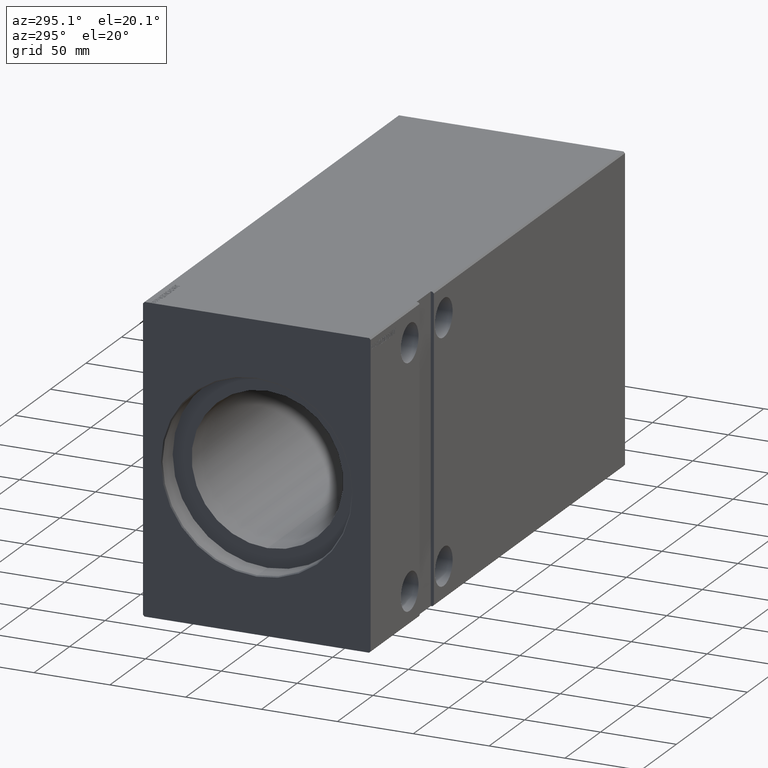
[diagram: clean part render]
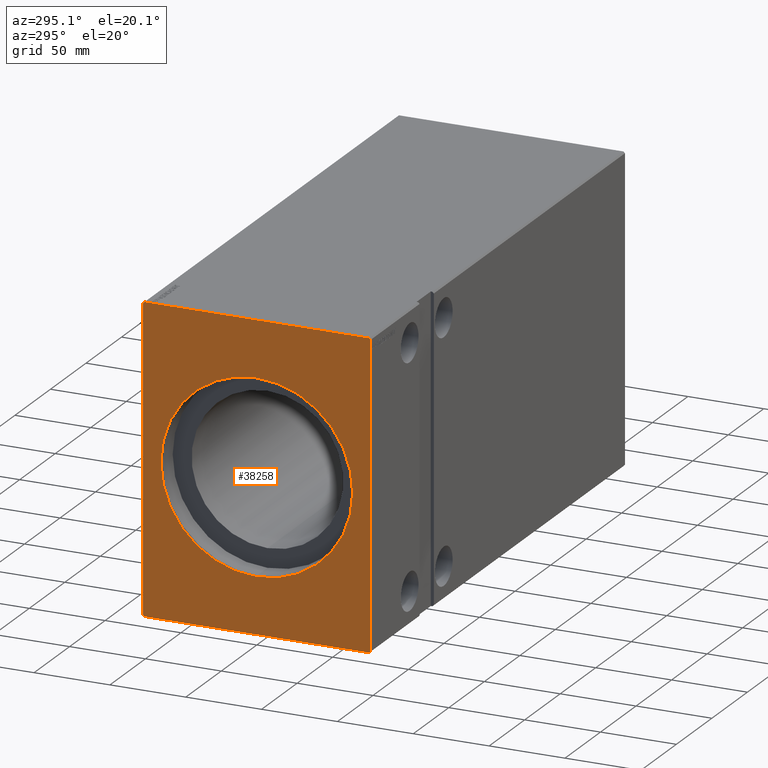
[diagram: same view with one face highlighted and labeled with its STEP entity id]
A machine part, auxiliary view. The second image highlights one B-rep face of the part: STEP entity #38258.
In plain terms, the highlighted planar face has unit normal (1, 0, 0).
Its self-contained STEP definition (entity closure, byte-faithful):
#1029 = DIRECTION ( 'NONE',  ( 0.000000000000000000, 1.401796748264086446E-16, -1.000000000000000000 ) ) ;
#2903 = CARTESIAN_POINT ( 'NONE',  ( 0.000000000000000000, -74.00000000000000000, 99.99999999999994316 ) ) ;
#3480 = CIRCLE ( 'NONE', #13685, 63.20000000000003126 ) ;
#3634 = DIRECTION ( 'NONE',  ( 0.000000000000000000, -0.7071067811865474617, 0.7071067811865474617 ) ) ;
#4190 = CARTESIAN_POINT ( 'NONE',  ( 0.000000000000000000, 74.00000000000001421, -100.0000000000000426 ) ) ;
#4796 = CARTESIAN_POINT ( 'NONE',  ( 0.000000000000000000, -73.99999999999998579, -100.0000000000000426 ) ) ;
#4915 = VECTOR ( 'NONE', #11312, 1000.000000000000114 ) ;
#5062 = EDGE_CURVE ( 'NONE', #20457, #39703, #41734, .T. ) ;
#6271 = AXIS2_PLACEMENT_3D ( 'NONE', #38188, #15203, #37768 ) ;
#6889 = CARTESIAN_POINT ( 'NONE',  ( 0.000000000000000000, 74.00000000000000000, 99.99999999999995737 ) ) ;
#7751 = ORIENTED_EDGE ( 'NONE', *, *, #5062, .F. ) ;
#7883 = DIRECTION ( 'NONE',  ( 0.000000000000000000, 0.7071067811865474617, -0.7071067811865474617 ) ) ;
#8468 = CARTESIAN_POINT ( 'NONE',  ( 0.000000000000000000, -75.00000000000000000, 98.99999999999994316 ) ) ;
#9426 = EDGE_CURVE ( 'NONE', #29618, #33906, #28245, .T. ) ;
#9592 = LINE ( 'NONE', #31967, #10909 ) ;
#9775 = VERTEX_POINT ( 'NONE', #33196 ) ;
#10095 = VECTOR ( 'NONE', #37890, 1000.000000000000000 ) ;
#10573 = EDGE_LOOP ( 'NONE', ( #31581, #41894 ) ) ;
#10909 = VECTOR ( 'NONE', #38356, 1000.000000000000000 ) ;
#11312 = DIRECTION ( 'NONE',  ( 0.000000000000000000, -0.7071067811865474617, -0.7071067811865474617 ) ) ;
#11520 = CARTESIAN_POINT ( 'NONE',  ( 0.000000000000000000, 0.000000000000000000, 0.000000000000000000 ) ) ;
#11842 = CARTESIAN_POINT ( 'NONE',  ( 0.000000000000000000, -73.99999999999998579, -100.0000000000000426 ) ) ;
#11940 = CARTESIAN_POINT ( 'NONE',  ( 0.000000000000000000, 0.000000000000000000, 63.20000000000003126 ) ) ;
#12329 = VERTEX_POINT ( 'NONE', #6889 ) ;
#12342 = CARTESIAN_POINT ( 'NONE',  ( 0.000000000000000000, 75.00000000000001421, -99.00000000000004263 ) ) ;
#13685 = AXIS2_PLACEMENT_3D ( 'NONE', #16311, #38674, #35275 ) ;
#15118 = VERTEX_POINT ( 'NONE', #36922 ) ;
#15196 = ORIENTED_EDGE ( 'NONE', *, *, #31089, .F. ) ;
#15203 = DIRECTION ( 'NONE',  ( 1.000000000000000000, 0.000000000000000000, 0.000000000000000000 ) ) ;
#16311 = CARTESIAN_POINT ( 'NONE',  ( 0.000000000000000000, 0.000000000000000000, 0.000000000000000000 ) ) ;
#17699 = DIRECTION ( 'NONE',  ( 0.000000000000000000, 0.000000000000000000, -1.000000000000000000 ) ) ;
#18278 = EDGE_CURVE ( 'NONE', #39703, #12329, #38994, .T. ) ;
#18658 = VERTEX_POINT ( 'NONE', #2903 ) ;
#18719 = CARTESIAN_POINT ( 'NONE',  ( 0.000000000000000000, 74.00000000000001421, -100.0000000000000426 ) ) ;
#18925 = EDGE_LOOP ( 'NONE', ( #38502, #7751, #15196, #38802, #31320, #27026, #19566, #24771 ) ) ;
#19539 = VECTOR ( 'NONE', #1029, 1000.000000000000000 ) ;
#19566 = ORIENTED_EDGE ( 'NONE', *, *, #40762, .F. ) ;
#20457 = VERTEX_POINT ( 'NONE', #24465 ) ;
#20463 = EDGE_CURVE ( 'NONE', #9775, #15118, #30231, .T. ) ;
#21231 = CARTESIAN_POINT ( 'NONE',  ( 0.000000000000000000, 7.739767770611276825E-15, -63.20000000000003126 ) ) ;
#23942 = CARTESIAN_POINT ( 'NONE',  ( 0.000000000000000000, 75.00000000000000000, 98.99999999999995737 ) ) ;
#24085 = LINE ( 'NONE', #40060, #37515 ) ;
#24465 = CARTESIAN_POINT ( 'NONE',  ( 0.000000000000000000, 75.00000000000001421, -99.00000000000004263 ) ) ;
#24771 = ORIENTED_EDGE ( 'NONE', *, *, #28962, .F. ) ;
#26437 = CARTESIAN_POINT ( 'NONE',  ( 0.000000000000000000, 75.00000000000000000, 98.99999999999995737 ) ) ;
#27026 = ORIENTED_EDGE ( 'NONE', *, *, #20463, .F. ) ;
#27909 = DIRECTION ( 'NONE',  ( 0.000000000000000000, 0.7071067811865474617, 0.7071067811865474617 ) ) ;
#27977 = VECTOR ( 'NONE', #27909, 1000.000000000000114 ) ;
#28245 = LINE ( 'NONE', #11842, #28398 ) ;
#28398 = VECTOR ( 'NONE', #41027, 1000.000000000000000 ) ;
#28962 = EDGE_CURVE ( 'NONE', #12329, #18658, #9592, .T. ) ;
#29618 = VERTEX_POINT ( 'NONE', #4796 ) ;
#30231 = LINE ( 'NONE', #8468, #19539 ) ;
#31089 = EDGE_CURVE ( 'NONE', #33906, #20457, #34920, .T. ) ;
#31117 = FACE_BOUND ( 'NONE', #10573, .T. ) ;
#31320 = ORIENTED_EDGE ( 'NONE', *, *, #33527, .F. ) ;
#31378 = EDGE_CURVE ( 'NONE', #35484, #34768, #3480, .T. ) ;
#31581 = ORIENTED_EDGE ( 'NONE', *, *, #31378, .T. ) ;
#31967 = CARTESIAN_POINT ( 'NONE',  ( 0.000000000000000000, 74.00000000000000000, 99.99999999999995737 ) ) ;
#33196 = CARTESIAN_POINT ( 'NONE',  ( 0.000000000000000000, -75.00000000000000000, 98.99999999999994316 ) ) ;
#33235 = VECTOR ( 'NONE', #3634, 1000.000000000000114 ) ;
#33527 = EDGE_CURVE ( 'NONE', #15118, #29618, #24085, .T. ) ;
#33534 = AXIS2_PLACEMENT_3D ( 'NONE', #11520, #40073, #17699 ) ;
#33906 = VERTEX_POINT ( 'NONE', #4190 ) ;
#34768 = VERTEX_POINT ( 'NONE', #21231 ) ;
#34920 = LINE ( 'NONE', #18719, #27977 ) ;
#34948 = CARTESIAN_POINT ( 'NONE',  ( 0.000000000000000000, -74.00000000000000000, 99.99999999999994316 ) ) ;
#35275 = DIRECTION ( 'NONE',  ( 0.000000000000000000, 0.000000000000000000, -1.000000000000000000 ) ) ;
#35484 = VERTEX_POINT ( 'NONE', #11940 ) ;
#36873 = PLANE ( 'NONE',  #33534 ) ;
#36922 = CARTESIAN_POINT ( 'NONE',  ( 0.000000000000000000, -74.99999999999997158, -99.00000000000005684 ) ) ;
#37515 = VECTOR ( 'NONE', #7883, 1000.000000000000114 ) ;
#37768 = DIRECTION ( 'NONE',  ( 0.000000000000000000, 0.000000000000000000, -1.000000000000000000 ) ) ;
#37890 = DIRECTION ( 'NONE',  ( 0.000000000000000000, -7.008983741320432232E-17, 1.000000000000000000 ) ) ;
#38136 = LINE ( 'NONE', #34948, #4915 ) ;
#38188 = CARTESIAN_POINT ( 'NONE',  ( 0.000000000000000000, 0.000000000000000000, 0.000000000000000000 ) ) ;
#38258 = ADVANCED_FACE ( 'NONE', ( #31117, #40282 ), #36873, .F. ) ;
#38356 = DIRECTION ( 'NONE',  ( 0.000000000000000000, -1.000000000000000000, -9.376883653928687363E-17 ) ) ;
#38502 = ORIENTED_EDGE ( 'NONE', *, *, #18278, .F. ) ;
#38674 = DIRECTION ( 'NONE',  ( 1.000000000000000000, 0.000000000000000000, 0.000000000000000000 ) ) ;
#38802 = ORIENTED_EDGE ( 'NONE', *, *, #9426, .F. ) ;
#38994 = LINE ( 'NONE', #26437, #33235 ) ;
#39703 = VERTEX_POINT ( 'NONE', #23942 ) ;
#40060 = CARTESIAN_POINT ( 'NONE',  ( 0.000000000000000000, -74.99999999999997158, -99.00000000000005684 ) ) ;
#40073 = DIRECTION ( 'NONE',  ( 1.000000000000000000, 0.000000000000000000, 0.000000000000000000 ) ) ;
#40279 = CIRCLE ( 'NONE', #6271, 63.20000000000003126 ) ;
#40282 = FACE_OUTER_BOUND ( 'NONE', #18925, .T. ) ;
#40417 = EDGE_CURVE ( 'NONE', #34768, #35484, #40279, .T. ) ;
#40762 = EDGE_CURVE ( 'NONE', #18658, #9775, #38136, .T. ) ;
#41027 = DIRECTION ( 'NONE',  ( 0.000000000000000000, 1.000000000000000000, 0.000000000000000000 ) ) ;
#41734 = LINE ( 'NONE', #12342, #10095 ) ;
#41894 = ORIENTED_EDGE ( 'NONE', *, *, #40417, .T. ) ;